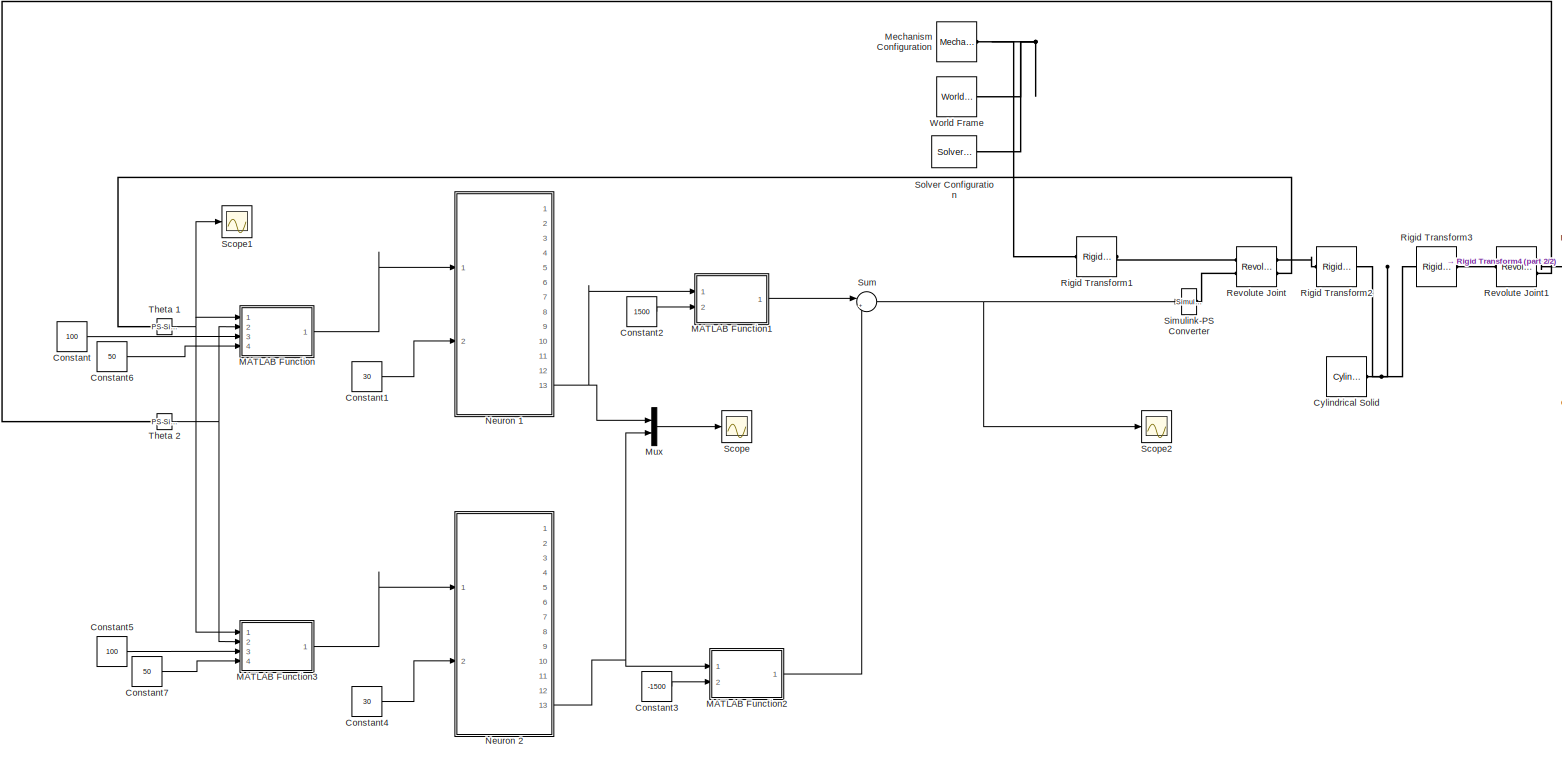
[diagram: root canvas - part 1/2, most of the canvas]
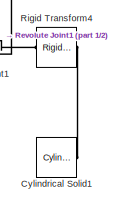
[diagram: root canvas - part 2/2, middle right region]
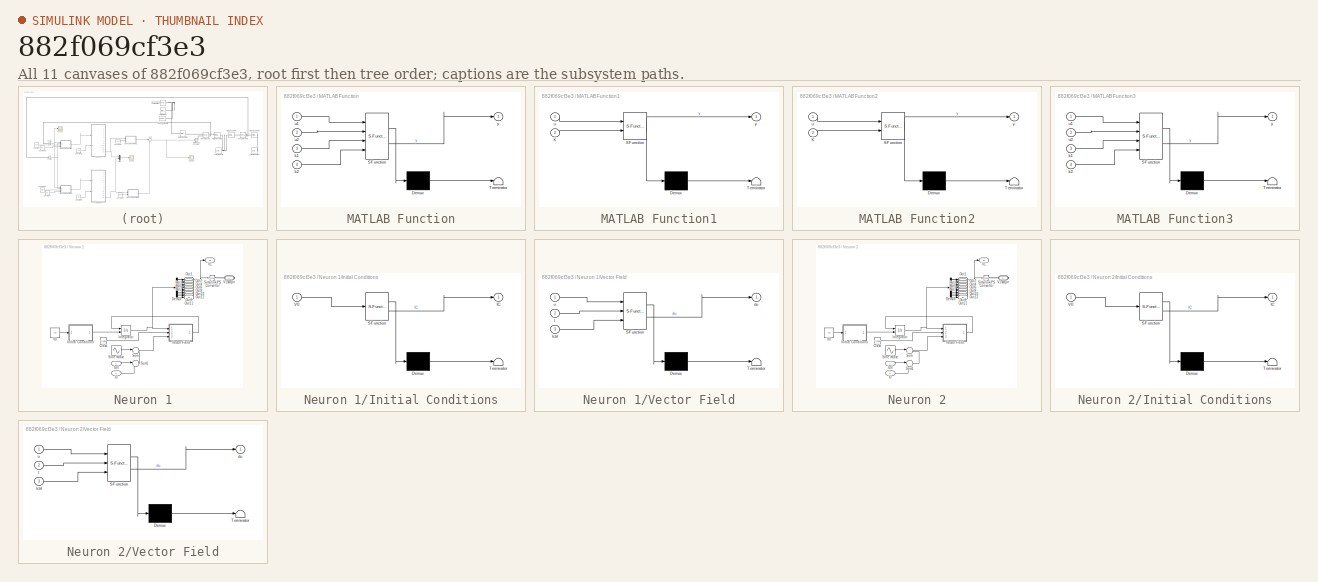
[diagram: thumbnail index - all 11 canvases of the model, root first then tree order]
MODEL slx_882f069cf3e3
KIND model
CONFIG AbsTol = auto
CONFIG EnableMultiTasking = off
CONFIG FixedStep = auto
CONFIG MaxStep = auto
CONFIG MinStep = auto
CONFIG RelTol = 1e-3
CONFIG SampleTimeConstraint = Unconstrained
CONFIG SolverName = VariableStepAuto
CONFIG StartTime = 0.0
CONFIG StopTime = 20
BLOCK [Constant] Constant
  Value = 100
BLOCK [Constant] Constant1
  Value = 30
BLOCK [Constant] Constant2
  Value = 1500
BLOCK [Constant] Constant3
  Value = -1500
BLOCK [Constant] Constant4
  Value = 30
BLOCK [Constant] Constant5
  Value = 100
BLOCK [Constant] Constant6
  Value = 50
BLOCK [Constant] Constant7
  Value = 50
BLOCK [Reference] Cylindrical Solid  REF=sm_lib/Body Elements/Cylindrical Solid
  Ports = [0, 0, 0, 0, 0, 0, 1]
  SourceBlock = sm_lib/Body Elements/Cylindrical Solid
  SourceProductBaseCode = MS
  SourceType = Cylindrical Solid
BLOCK [Reference] Cylindrical Solid1  REF=sm_lib/Body Elements/Cylindrical Solid
  Ports = [0, 0, 0, 0, 0, 0, 1]
  SourceBlock = sm_lib/Body Elements/Cylindrical Solid
  SourceProductBaseCode = MS
  SourceType = Cylindrical Solid
BLOCK [SubSystem] MATLAB Function
  ErrorFcn = Stateflow.Translate.translate
  PermitHierarchicalResolution = ExplicitOnly
  Ports = [4, 1]
  RequestExecContextInheritance = off
  SFBlockType = MATLAB Function
  TreatAsAtomicUnit = on
BLOCK [Demux] MATLAB Function/ Demux 
  Outputs = 1
  Ports = [1, 1]
BLOCK [S-Function] MATLAB Function/ SFunction 
  EnableBusSupport = on
  FunctionName = sf_sfun
  PortCounts = [4 2]
  Ports = [4, 2]
  SFcnIsStateOwnerBlock = off
  SFunctionDeploymentMode = off
  Tag = Stateflow S-Function 5
BLOCK [Terminator] MATLAB Function/ Terminator 
BLOCK [Inport] MATLAB Function/k1
  Port = 3
BLOCK [Inport] MATLAB Function/k2
  Port = 4
BLOCK [Inport] MATLAB Function/u1
BLOCK [Inport] MATLAB Function/u2
  Port = 2
BLOCK [Outport] MATLAB Function/y
BLOCK [SubSystem] MATLAB Function1
  ErrorFcn = Stateflow.Translate.translate
  PermitHierarchicalResolution = ExplicitOnly
  Ports = [2, 1]
  RequestExecContextInheritance = off
  SFBlockType = MATLAB Function
  TreatAsAtomicUnit = on
BLOCK [Demux] MATLAB Function1/ Demux 
  Outputs = 1
  Ports = [1, 1]
BLOCK [S-Function] MATLAB Function1/ SFunction 
  EnableBusSupport = on
  FunctionName = sf_sfun
  PortCounts = [2 2]
  Ports = [2, 2]
  SFcnIsStateOwnerBlock = off
  SFunctionDeploymentMode = off
  Tag = Stateflow S-Function 3
BLOCK [Terminator] MATLAB Function1/ Terminator 
BLOCK [Inport] MATLAB Function1/K
  Port = 2
BLOCK [Inport] MATLAB Function1/u
BLOCK [Outport] MATLAB Function1/y
BLOCK [SubSystem] MATLAB Function2
  ErrorFcn = Stateflow.Translate.translate
  PermitHierarchicalResolution = ExplicitOnly
  Ports = [2, 1]
  RequestExecContextInheritance = off
  SFBlockType = MATLAB Function
  TreatAsAtomicUnit = on
BLOCK [Demux] MATLAB Function2/ Demux 
  Outputs = 1
  Ports = [1, 1]
BLOCK [S-Function] MATLAB Function2/ SFunction 
  EnableBusSupport = on
  FunctionName = sf_sfun
  PortCounts = [2 2]
  Ports = [2, 2]
  SFcnIsStateOwnerBlock = off
  SFunctionDeploymentMode = off
  Tag = Stateflow S-Function 7
BLOCK [Terminator] MATLAB Function2/ Terminator 
BLOCK [Inport] MATLAB Function2/K
  Port = 2
BLOCK [Inport] MATLAB Function2/u
BLOCK [Outport] MATLAB Function2/y
BLOCK [SubSystem] MATLAB Function3
  ErrorFcn = Stateflow.Translate.translate
  PermitHierarchicalResolution = ExplicitOnly
  Ports = [4, 1]
  RequestExecContextInheritance = off
  SFBlockType = MATLAB Function
  TreatAsAtomicUnit = on
BLOCK [Demux] MATLAB Function3/ Demux 
  Outputs = 1
  Ports = [1, 1]
BLOCK [S-Function] MATLAB Function3/ SFunction 
  EnableBusSupport = on
  FunctionName = sf_sfun
  PortCounts = [4 2]
  Ports = [4, 2]
  SFcnIsStateOwnerBlock = off
  SFunctionDeploymentMode = off
  Tag = Stateflow S-Function 8
BLOCK [Terminator] MATLAB Function3/ Terminator 
BLOCK [Inport] MATLAB Function3/k1
  Port = 3
BLOCK [Inport] MATLAB Function3/k2
  Port = 4
BLOCK [Inport] MATLAB Function3/u1
BLOCK [Inport] MATLAB Function3/u2
  Port = 2
BLOCK [Outport] MATLAB Function3/y
BLOCK [Reference] Mechanism Configuration  REF=sm_lib/Utilities/Mechanism
Configuration
  Ports = [0, 0, 0, 0, 0, 0, 1]
  SourceBlock = sm_lib/Utilities/Mechanism\nConfiguration
  SourceProductBaseCode = MS
  SourceType = Mechanism\nConfiguration
BLOCK [Mux] Mux
  DisplayOption = bar
  Inputs = 2
  Ports = [2, 1]
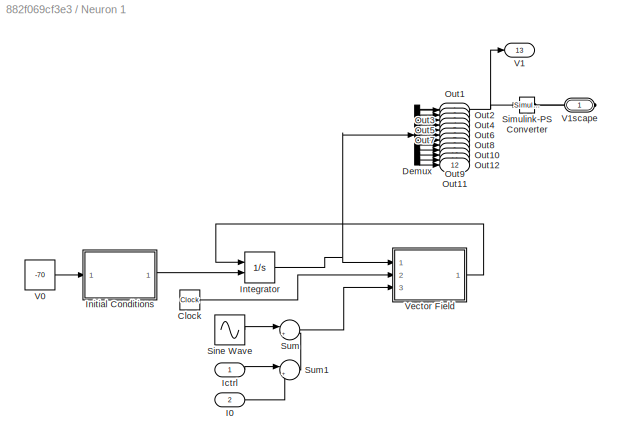
BLOCK [SubSystem] Neuron 1
  Ports = [2, 13, 0, 0, 0, 0, 1]
  RequestExecContextInheritance = off
BLOCK [Clock] Neuron 1/Clock
BLOCK [Demux] Neuron 1/Demux
  Outputs = 13
  Ports = [1, 13]
BLOCK [Inport] Neuron 1/I0
  Port = 2
BLOCK [Inport] Neuron 1/Ictrl
BLOCK [SubSystem] Neuron 1/Initial Conditions
  ErrorFcn = Stateflow.Translate.translate
  PermitHierarchicalResolution = ExplicitOnly
  Ports = [1, 1]
  RequestExecContextInheritance = off
  SFBlockType = MATLAB Function
  TreatAsAtomicUnit = on
BLOCK [Demux] Neuron 1/Initial Conditions/ Demux 
  Outputs = 1
  Ports = [1, 1]
BLOCK [S-Function] Neuron 1/Initial Conditions/ SFunction 
  EnableBusSupport = on
  FunctionName = sf_sfun
  PortCounts = [1 2]
  Ports = [1, 2]
  SFcnIsStateOwnerBlock = off
  SFunctionDeploymentMode = off
  Tag = Stateflow S-Function 1
BLOCK [Terminator] Neuron 1/Initial Conditions/ Terminator 
BLOCK [Outport] Neuron 1/Initial Conditions/IC
BLOCK [Inport] Neuron 1/Initial Conditions/V0
BLOCK [Integrator] Neuron 1/Integrator
  InitialCondition = [-70,]
  InitialConditionSource = external
  Ports = [2, 1]
BLOCK [Outport] Neuron 1/Out1
BLOCK [Outport] Neuron 1/Out10
  Port = 10
BLOCK [Outport] Neuron 1/Out11
  Port = 11
BLOCK [Outport] Neuron 1/Out12
  Port = 12
BLOCK [Outport] Neuron 1/Out2
  Port = 2
BLOCK [Outport] Neuron 1/Out3
  Port = 3
BLOCK [Outport] Neuron 1/Out4
  Port = 4
BLOCK [Outport] Neuron 1/Out5
  Port = 5
BLOCK [Outport] Neuron 1/Out6
  Port = 6
BLOCK [Outport] Neuron 1/Out7
  Port = 7
BLOCK [Outport] Neuron 1/Out8
  Port = 8
BLOCK [Outport] Neuron 1/Out9
  Port = 9
BLOCK [Reference] Neuron 1/Simulink-PS Converter  REF=nesl_utility/Simulink-PS
Converter
  Ports = [1, 0, 0, 0, 0, 0, 1]
  SourceBlock = nesl_utility/Simulink-PS\nConverter
  SourceProductBaseCode = SS,PW,VE
  SourceType = Simulink-PS\nConverter
BLOCK [Sin] Neuron 1/Sine Wave
  Amplitude = 0
  Frequency = 0.002
  Ports = [0, 1]
  SampleTime = 0
BLOCK [Sum] Neuron 1/Sum
  Inputs = |++
  Ports = [2, 1]
BLOCK [Sum] Neuron 1/Sum1
  Inputs = |++
  Ports = [2, 1]
BLOCK [Constant] Neuron 1/V0
  Value = -70
BLOCK [Outport] Neuron 1/V1
  Port = 13
BLOCK [PMIOPort] Neuron 1/V1scape
  Side = Right
BLOCK [SubSystem] Neuron 1/Vector Field
  ErrorFcn = Stateflow.Translate.translate
  PermitHierarchicalResolution = ExplicitOnly
  Ports = [3, 1]
  RequestExecContextInheritance = off
  SFBlockType = MATLAB Function
  TreatAsAtomicUnit = on
BLOCK [Demux] Neuron 1/Vector Field/ Demux 
  Outputs = 1
  Ports = [1, 1]
BLOCK [S-Function] Neuron 1/Vector Field/ SFunction 
  EnableBusSupport = on
  FunctionName = sf_sfun
  PortCounts = [3 2]
  Ports = [3, 2]
  SFcnIsStateOwnerBlock = off
  SFunctionDeploymentMode = off
  Tag = Stateflow S-Function 2
BLOCK [Terminator] Neuron 1/Vector Field/ Terminator 
BLOCK [Inport] Neuron 1/Vector Field/Ictrl
  Port = 3
BLOCK [Outport] Neuron 1/Vector Field/du
BLOCK [Inport] Neuron 1/Vector Field/t
  Port = 2
BLOCK [Inport] Neuron 1/Vector Field/u
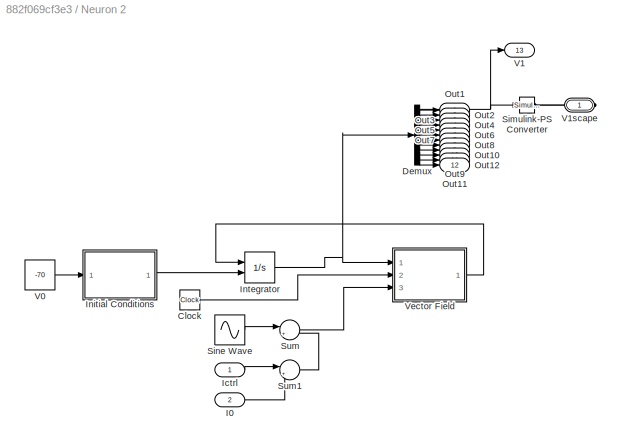
BLOCK [SubSystem] Neuron 2
  Ports = [2, 13, 0, 0, 0, 0, 1]
  RequestExecContextInheritance = off
BLOCK [Clock] Neuron 2/Clock
BLOCK [Demux] Neuron 2/Demux
  Outputs = 13
  Ports = [1, 13]
BLOCK [Inport] Neuron 2/I0
  Port = 2
BLOCK [Inport] Neuron 2/Ictrl
BLOCK [SubSystem] Neuron 2/Initial Conditions
  ErrorFcn = Stateflow.Translate.translate
  PermitHierarchicalResolution = ExplicitOnly
  Ports = [1, 1]
  RequestExecContextInheritance = off
  SFBlockType = MATLAB Function
  TreatAsAtomicUnit = on
BLOCK [Demux] Neuron 2/Initial Conditions/ Demux 
  Outputs = 1
  Ports = [1, 1]
BLOCK [S-Function] Neuron 2/Initial Conditions/ SFunction 
  EnableBusSupport = on
  FunctionName = sf_sfun
  PortCounts = [1 2]
  Ports = [1, 2]
  SFcnIsStateOwnerBlock = off
  SFunctionDeploymentMode = off
  Tag = Stateflow S-Function 4
BLOCK [Terminator] Neuron 2/Initial Conditions/ Terminator 
BLOCK [Outport] Neuron 2/Initial Conditions/IC
BLOCK [Inport] Neuron 2/Initial Conditions/V0
BLOCK [Integrator] Neuron 2/Integrator
  InitialCondition = [-70,]
  InitialConditionSource = external
  Ports = [2, 1]
BLOCK [Outport] Neuron 2/Out1
BLOCK [Outport] Neuron 2/Out10
  Port = 10
BLOCK [Outport] Neuron 2/Out11
  Port = 11
BLOCK [Outport] Neuron 2/Out12
  Port = 12
BLOCK [Outport] Neuron 2/Out2
  Port = 2
BLOCK [Outport] Neuron 2/Out3
  Port = 3
BLOCK [Outport] Neuron 2/Out4
  Port = 4
BLOCK [Outport] Neuron 2/Out5
  Port = 5
BLOCK [Outport] Neuron 2/Out6
  Port = 6
BLOCK [Outport] Neuron 2/Out7
  Port = 7
BLOCK [Outport] Neuron 2/Out8
  Port = 8
BLOCK [Outport] Neuron 2/Out9
  Port = 9
BLOCK [Reference] Neuron 2/Simulink-PS Converter  REF=nesl_utility/Simulink-PS
Converter
  Ports = [1, 0, 0, 0, 0, 0, 1]
  SourceBlock = nesl_utility/Simulink-PS\nConverter
  SourceProductBaseCode = SS,PW,VE
  SourceType = Simulink-PS\nConverter
BLOCK [Sin] Neuron 2/Sine Wave
  Amplitude = 0
  Frequency = 0.002
  Ports = [0, 1]
  SampleTime = 0
BLOCK [Sum] Neuron 2/Sum
  Inputs = |++
  Ports = [2, 1]
BLOCK [Sum] Neuron 2/Sum1
  Inputs = |++
  Ports = [2, 1]
BLOCK [Constant] Neuron 2/V0
  Value = -70
BLOCK [Outport] Neuron 2/V1
  Port = 13
BLOCK [PMIOPort] Neuron 2/V1scape
  Side = Right
BLOCK [SubSystem] Neuron 2/Vector Field
  ErrorFcn = Stateflow.Translate.translate
  PermitHierarchicalResolution = ExplicitOnly
  Ports = [3, 1]
  RequestExecContextInheritance = off
  SFBlockType = MATLAB Function
  TreatAsAtomicUnit = on
BLOCK [Demux] Neuron 2/Vector Field/ Demux 
  Outputs = 1
  Ports = [1, 1]
BLOCK [S-Function] Neuron 2/Vector Field/ SFunction 
  EnableBusSupport = on
  FunctionName = sf_sfun
  PortCounts = [3 2]
  Ports = [3, 2]
  SFcnIsStateOwnerBlock = off
  SFunctionDeploymentMode = off
  Tag = Stateflow S-Function 6
BLOCK [Terminator] Neuron 2/Vector Field/ Terminator 
BLOCK [Inport] Neuron 2/Vector Field/Ictrl
  Port = 3
BLOCK [Outport] Neuron 2/Vector Field/du
BLOCK [Inport] Neuron 2/Vector Field/t
  Port = 2
BLOCK [Inport] Neuron 2/Vector Field/u
BLOCK [Reference] Revolute Joint  REF=sm_lib/Joints/Revolute Joint
  Ports = [0, 0, 0, 0, 0, 2, 2]
  SourceBlock = sm_lib/Joints/Revolute Joint
  SourceProductBaseCode = MS
  SourceType = Revolute Joint
BLOCK [Reference] Revolute Joint1  REF=sm_lib/Joints/Revolute Joint
  Ports = [0, 0, 0, 0, 0, 1, 2]
  SourceBlock = sm_lib/Joints/Revolute Joint
  SourceProductBaseCode = MS
  SourceType = Revolute Joint
BLOCK [Reference] Rigid Transform1  REF=sm_lib/Frames and
Transforms/Rigid
Transform
  Ports = [0, 0, 0, 0, 0, 1, 1]
  SourceBlock = sm_lib/Frames and\nTransforms/Rigid\nTransform
  SourceProductBaseCode = MS
  SourceType = Rigid\nTransform
BLOCK [Reference] Rigid Transform2  REF=sm_lib/Frames and
Transforms/Rigid
Transform
  Ports = [0, 0, 0, 0, 0, 1, 1]
  SourceBlock = sm_lib/Frames and\nTransforms/Rigid\nTransform
  SourceProductBaseCode = MS
  SourceType = Rigid\nTransform
BLOCK [Reference] Rigid Transform3  REF=sm_lib/Frames and
Transforms/Rigid
Transform
  Ports = [0, 0, 0, 0, 0, 1, 1]
  SourceBlock = sm_lib/Frames and\nTransforms/Rigid\nTransform
  SourceProductBaseCode = MS
  SourceType = Rigid\nTransform
BLOCK [Reference] Rigid Transform4  REF=sm_lib/Frames and
Transforms/Rigid
Transform
  Ports = [0, 0, 0, 0, 0, 1, 1]
  SourceBlock = sm_lib/Frames and\nTransforms/Rigid\nTransform
  SourceProductBaseCode = MS
  SourceType = Rigid\nTransform
BLOCK [Scope] Scope
  Floating = off
  NumInputPorts = 1
  Ports = [1]
  ScopeSpecificationString = Simulink.scopes.TimeScopeBlockCfg('CurrentConfiguration', extmgr.ConfigurationSet(extmgr.Configuration('Core','General UI',true),extmgr.Configuration('Core','Source UI',true),extmgr.Configuration('Sources','WiredSimulink',true,'DataLoggingVariableName','ScopeData1'),extmgr.Configuration('Visuals','Time Domain',true,'SerializedDisplays',{struct('MinYLimReal','-86.69755','MaxYLimReal','18.45432','YL...<+1469ch>
BLOCK [Scope] Scope1
  Floating = off
  NumInputPorts = 1
  Ports = [1]
  ScopeSpecificationString = Simulink.scopes.TimeScopeBlockCfg('CurrentConfiguration', extmgr.ConfigurationSet(extmgr.Configuration('Core','General UI',true),extmgr.Configuration('Core','Source UI',true),extmgr.Configuration('Sources','WiredSimulink',true),extmgr.Configuration('Visuals','Time Domain',true,'SerializedDisplays',{struct('MinYLimReal','-0.35395','MaxYLimReal','6.63294','YLabelReal','','MinYLimMag','0.00000','MaxY...<+1360ch>
BLOCK [Scope] Scope2
  Floating = off
  NumInputPorts = 1
  Ports = [1]
  ScopeSpecificationString = Simulink.scopes.TimeScopeBlockCfg('CurrentConfiguration', extmgr.ConfigurationSet(extmgr.Configuration('Core','General UI',true),extmgr.Configuration('Core','Source UI',true),extmgr.Configuration('Sources','WiredSimulink',true,'DataLoggingVariableName','ScopeData2'),extmgr.Configuration('Visuals','Time Domain',true,'SerializedDisplays',{struct('MinYLimReal','-1875.00000','MaxYLimReal','1875.00000'...<+1459ch>
BLOCK [Reference] Simulink-PS Converter  REF=nesl_utility/Simulink-PS
Converter
  Ports = [1, 0, 0, 0, 0, 0, 1]
  SourceBlock = nesl_utility/Simulink-PS\nConverter
  SourceProductBaseCode = SS,PW,VE
  SourceType = Simulink-PS\nConverter
BLOCK [Reference] Solver Configuration  REF=nesl_utility/Solver
Configuration
  Ports = [0, 0, 0, 0, 0, 0, 1]
  SourceBlock = nesl_utility/Solver\nConfiguration
  SourceProductBaseCode = SS,PW,VE
  SourceType = Solver\nConfiguration
BLOCK [Sum] Sum
  Inputs = |++
  Ports = [2, 1]
BLOCK [Reference] Theta 1  REF=nesl_utility/PS-Simulink
Converter
  Ports = [0, 1, 0, 0, 0, 1]
  SourceBlock = nesl_utility/PS-Simulink\nConverter
  SourceProductBaseCode = SS,PW,VE
  SourceType = PS-Simulink\nConverter
BLOCK [Reference] Theta 2  REF=nesl_utility/PS-Simulink
Converter
  Ports = [0, 1, 0, 0, 0, 1]
  SourceBlock = nesl_utility/PS-Simulink\nConverter
  SourceProductBaseCode = SS,PW,VE
  SourceType = PS-Simulink\nConverter
BLOCK [Reference] World Frame  REF=sm_lib/Frames and
Transforms/World Frame
  Ports = [0, 0, 0, 0, 0, 0, 1]
  SourceBlock = sm_lib/Frames and\nTransforms/World Frame
  SourceProductBaseCode = MS
  SourceType = World Frame
LINE Constant1:1 -> Neuron 1:2
LINE Constant2:1 -> MATLAB Function1:2
LINE Constant3:1 -> MATLAB Function2:2
LINE Constant4:1 -> Neuron 2:2
LINE Constant5:1 -> MATLAB Function3:3
LINE Constant6:1 -> MATLAB Function:4
LINE Constant7:1 -> MATLAB Function3:4
LINE Constant:1 -> MATLAB Function:3
LINE MATLAB Function1:1 -> Sum:1
LINE MATLAB Function2:1 -> Sum:2
LINE MATLAB Function3:1 -> Neuron 2:1
LINE MATLAB Function:1 -> Neuron 1:1
LINE Mux:1 -> Scope:1
LINE Neuron 1/Clock:1 -> Neuron 1/Vector Field:2
NET Neuron 1/Demux:1 -> Neuron 1/Simulink-PS Converter:1, Neuron 1/V1:1
LINE Neuron 1/Demux:10 -> Neuron 1/Out9:1
LINE Neuron 1/Demux:11 -> Neuron 1/Out10:1
LINE Neuron 1/Demux:12 -> Neuron 1/Out11:1
LINE Neuron 1/Demux:13 -> Neuron 1/Out12:1
LINE Neuron 1/Demux:2 -> Neuron 1/Out1:1
LINE Neuron 1/Demux:3 -> Neuron 1/Out2:1
LINE Neuron 1/Demux:4 -> Neuron 1/Out3:1
LINE Neuron 1/Demux:5 -> Neuron 1/Out4:1
LINE Neuron 1/Demux:6 -> Neuron 1/Out5:1
LINE Neuron 1/Demux:7 -> Neuron 1/Out6:1
LINE Neuron 1/Demux:8 -> Neuron 1/Out7:1
LINE Neuron 1/Demux:9 -> Neuron 1/Out8:1
LINE Neuron 1/I0:1 -> Neuron 1/Sum1:2
LINE Neuron 1/Ictrl:1 -> Neuron 1/Sum1:1
LINE Neuron 1/Initial Conditions:1 -> Neuron 1/Integrator:2
NET Neuron 1/Integrator:1 -> Neuron 1/Demux:1, Neuron 1/Vector Field:1
LINE Neuron 1/Sine Wave:1 -> Neuron 1/Sum:1
LINE Neuron 1/Sum1:1 -> Neuron 1/Sum:2
LINE Neuron 1/Sum:1 -> Neuron 1/Vector Field:3
LINE Neuron 1/V0:1 -> Neuron 1/Initial Conditions:1
LINE Neuron 1/Vector Field:1 -> Neuron 1/Integrator:1
NET Neuron 1:13 -> MATLAB Function1:1, Mux:1
LINE Neuron 2/Clock:1 -> Neuron 2/Vector Field:2
NET Neuron 2/Demux:1 -> Neuron 2/Simulink-PS Converter:1, Neuron 2/V1:1
LINE Neuron 2/Demux:10 -> Neuron 2/Out9:1
LINE Neuron 2/Demux:11 -> Neuron 2/Out10:1
LINE Neuron 2/Demux:12 -> Neuron 2/Out11:1
LINE Neuron 2/Demux:13 -> Neuron 2/Out12:1
LINE Neuron 2/Demux:2 -> Neuron 2/Out1:1
LINE Neuron 2/Demux:3 -> Neuron 2/Out2:1
LINE Neuron 2/Demux:4 -> Neuron 2/Out3:1
LINE Neuron 2/Demux:5 -> Neuron 2/Out4:1
LINE Neuron 2/Demux:6 -> Neuron 2/Out5:1
LINE Neuron 2/Demux:7 -> Neuron 2/Out6:1
LINE Neuron 2/Demux:8 -> Neuron 2/Out7:1
LINE Neuron 2/Demux:9 -> Neuron 2/Out8:1
LINE Neuron 2/I0:1 -> Neuron 2/Sum1:2
LINE Neuron 2/Ictrl:1 -> Neuron 2/Sum1:1
LINE Neuron 2/Initial Conditions:1 -> Neuron 2/Integrator:2
NET Neuron 2/Integrator:1 -> Neuron 2/Demux:1, Neuron 2/Vector Field:1
LINE Neuron 2/Sine Wave:1 -> Neuron 2/Sum:1
LINE Neuron 2/Sum1:1 -> Neuron 2/Sum:2
LINE Neuron 2/Sum:1 -> Neuron 2/Vector Field:3
LINE Neuron 2/V0:1 -> Neuron 2/Initial Conditions:1
LINE Neuron 2/Vector Field:1 -> Neuron 2/Integrator:1
NET Neuron 2:13 -> MATLAB Function2:1, Mux:2
NET Sum:1 -> Scope2:1, Simulink-PS Converter:1
NET Theta 1:1 -> MATLAB Function3:1, MATLAB Function:1, Scope1:1
NET Theta 2:1 -> MATLAB Function3:2, MATLAB Function:2
PLINE Cylindrical Solid1:RConn1 -- Rigid Transform4:RConn1
PNET net1: Cylindrical Solid:RConn1 -- Rigid Transform2:RConn1 -- Rigid Transform3:LConn1
PNET net2: Mechanism Configuration:RConn1 -- Rigid Transform1:LConn1 -- Solver Configuration:RConn1 -- World Frame:RConn1
PLINE Neuron 1/Simulink-PS Converter:RConn1 -- Neuron 1/V1scape:RConn1
PLINE Neuron 2/Simulink-PS Converter:RConn1 -- Neuron 2/V1scape:RConn1
PLINE Revolute Joint1:LConn1 -- Rigid Transform3:RConn1
PLINE Revolute Joint1:RConn1 -- Rigid Transform4:LConn1
PLINE Revolute Joint1:RConn2 -- Theta 2:LConn1
PLINE Revolute Joint:LConn1 -- Rigid Transform1:RConn1
PLINE Revolute Joint:LConn2 -- Simulink-PS Converter:RConn1
PLINE Revolute Joint:RConn1 -- Rigid Transform2:LConn1
PLINE Revolute Joint:RConn2 -- Theta 1:LConn1
note: NET lines group one-source signal fan-out (src -> all destinations, sorted); 1:1 wires keep LINE; PNET lines group multi-terminal physical nets as a canonical sorted terminal list (undirected conserving connections); 2-terminal nets keep the pairwise PLINE form
CHART Neuron 1/Initial Conditions states=1 transitions=1
  STATE_LABEL 'eML_blk_kernel()'
  STATE_LABEL 'SCRIPT:\nfunction IC = fcn(V0)\n\nVCa = 120.;\naa=0.1;\nbb=0.1;\ngCaL=0.;\ngCaT=0.;\n\nmNa0=mNainf(V0);\nhNa0=hNainf(V0);\nmKd0=mKdinf(V0);\nmAf0=mAfinf(V0); \nhAf0=hAfinf(V0); \nmAs0=mAsinf(V0); \nhAs0=hAsinf(V0); \nmCaL0=mCaLinf(V0); \nmCaT0=mCaTinf(V0); \nhCaT0=hCaTinf(V0); \nmH0=mHinf(V0);\nCa0=(-aa*gCaL*mCaL0*(V0-VCa))+(-bb*gCaT*mCaT0*hCaT0*(V0-VCa));\n\nIC = [V0; mNa0; hNa0; mKd0; mAf0; hAf0; mAs0; hAs0; mCaL0; m...<+1065ch>'
CHART Neuron 1/Vector Field states=1 transitions=1
  STATE_LABEL 'eML_blk_kernel()'
  STATE_LABEL 'SCRIPT:\nfunction du = fcn(u,t,Ictrl)\n\nVNa = 40.; \nVK = -90.; \nVCa = 120.;\nVH= -40.;\nVl = -50.;\nC=0.1;\naa=0.1;\nbb=0.1;\n \ngl=0.3;\ngNa=100.;\ngKd=65.;\ngAf=15.0; \ngAs=0.; \ngKCa=0.;\ngCaL=0.;\ngCaT=0.;\ngH=0.;\n\nIapp=200.0;%217.8;  Close to reobase, which is around 228.\n\nI1=0.0;%10.; \nti1=500;\ntf1=2500; \n\nI2=0.0;%10.5; \nti2=3500; \ntf2=5500; \n\n% Variables\nV=u(1); % Membrane potential\nmNa=u(2); % Sodium curre...<+3551ch>'
CHART MATLAB Function1 states=1 transitions=1
  STATE_LABEL 'eML_blk_kernel()'
  STATE_LABEL 'SCRIPT:\nfunction y = fcn(u,K)\n\ny = K/(1+exp(-(u+20)));\n'
CHART Neuron 2/Initial Conditions states=1 transitions=1
  STATE_LABEL 'eML_blk_kernel()'
  STATE_LABEL 'SCRIPT:\nfunction IC = fcn(V0)\n\nVCa = 120.;\naa=0.1;\nbb=0.1;\ngCaL=0.;\ngCaT=0.;\n\nmNa0=mNainf(V0);\nhNa0=hNainf(V0);\nmKd0=mKdinf(V0);\nmAf0=mAfinf(V0); \nhAf0=hAfinf(V0); \nmAs0=mAsinf(V0); \nhAs0=hAsinf(V0); \nmCaL0=mCaLinf(V0); \nmCaT0=mCaTinf(V0); \nhCaT0=hCaTinf(V0); \nmH0=mHinf(V0);\nCa0=(-aa*gCaL*mCaL0*(V0-VCa))+(-bb*gCaT*mCaT0*hCaT0*(V0-VCa));\n\nIC = [V0; mNa0; hNa0; mKd0; mAf0; hAf0; mAs0; hAs0; mCaL0; m...<+1065ch>'
CHART MATLAB Function states=1 transitions=1
  STATE_LABEL 'eML_blk_kernel()'
  STATE_LABEL 'SCRIPT:\nfunction y = fcn(u1,u2,k1,k2)\n\ny = -k1*sin((u1-pi-0.1))+k2*sin(u2);\n'
CHART Neuron 2/Vector Field states=1 transitions=1
  STATE_LABEL 'eML_blk_kernel()'
  STATE_LABEL 'SCRIPT:\nfunction du = fcn(u,t,Ictrl)\n\nVNa = 40.; \nVK = -90.; \nVCa = 120.;\nVH= -40.;\nVl = -50.;\nC=0.1;\naa=0.1;\nbb=0.1;\n \ngl=0.3;\ngNa=100.;\ngKd=65.;\ngAf=15.0; \ngAs=0.; \ngKCa=0.;\ngCaL=0.;\ngCaT=0.;\ngH=0.;\n\nIapp=200.0;%217.8;  Close to reobase, which is around 228.\n\nI1=0.0;%10.; \nti1=500;\ntf1=2500; \n\nI2=0.0;%10.5; \nti2=3500; \ntf2=5500; \n\n% Variables\nV=u(1); % Membrane potential\nmNa=u(2); % Sodium curre...<+3551ch>'
CHART MATLAB Function2 states=1 transitions=1
  STATE_LABEL 'eML_blk_kernel()'
  STATE_LABEL 'SCRIPT:\nfunction y = fcn(u,K)\n\ny = K/(1+exp(-(u+20)));\n'
CHART MATLAB Function3 states=1 transitions=1
  STATE_LABEL 'eML_blk_kernel()'
  STATE_LABEL 'SCRIPT:\nfunction y = fcn(u1,u2,k1,k2)\n\ny = k1*sin((u1-pi+0.1))-k2*sin(u2);\n'
CHART  states=0 transitions=0
CHART  states=0 transitions=0
CHART  states=0 transitions=0
CHART  states=0 transitions=0
CHART  states=0 transitions=0
CHART  states=0 transitions=0
CHART  states=0 transitions=0
CHART  states=0 transitions=0
